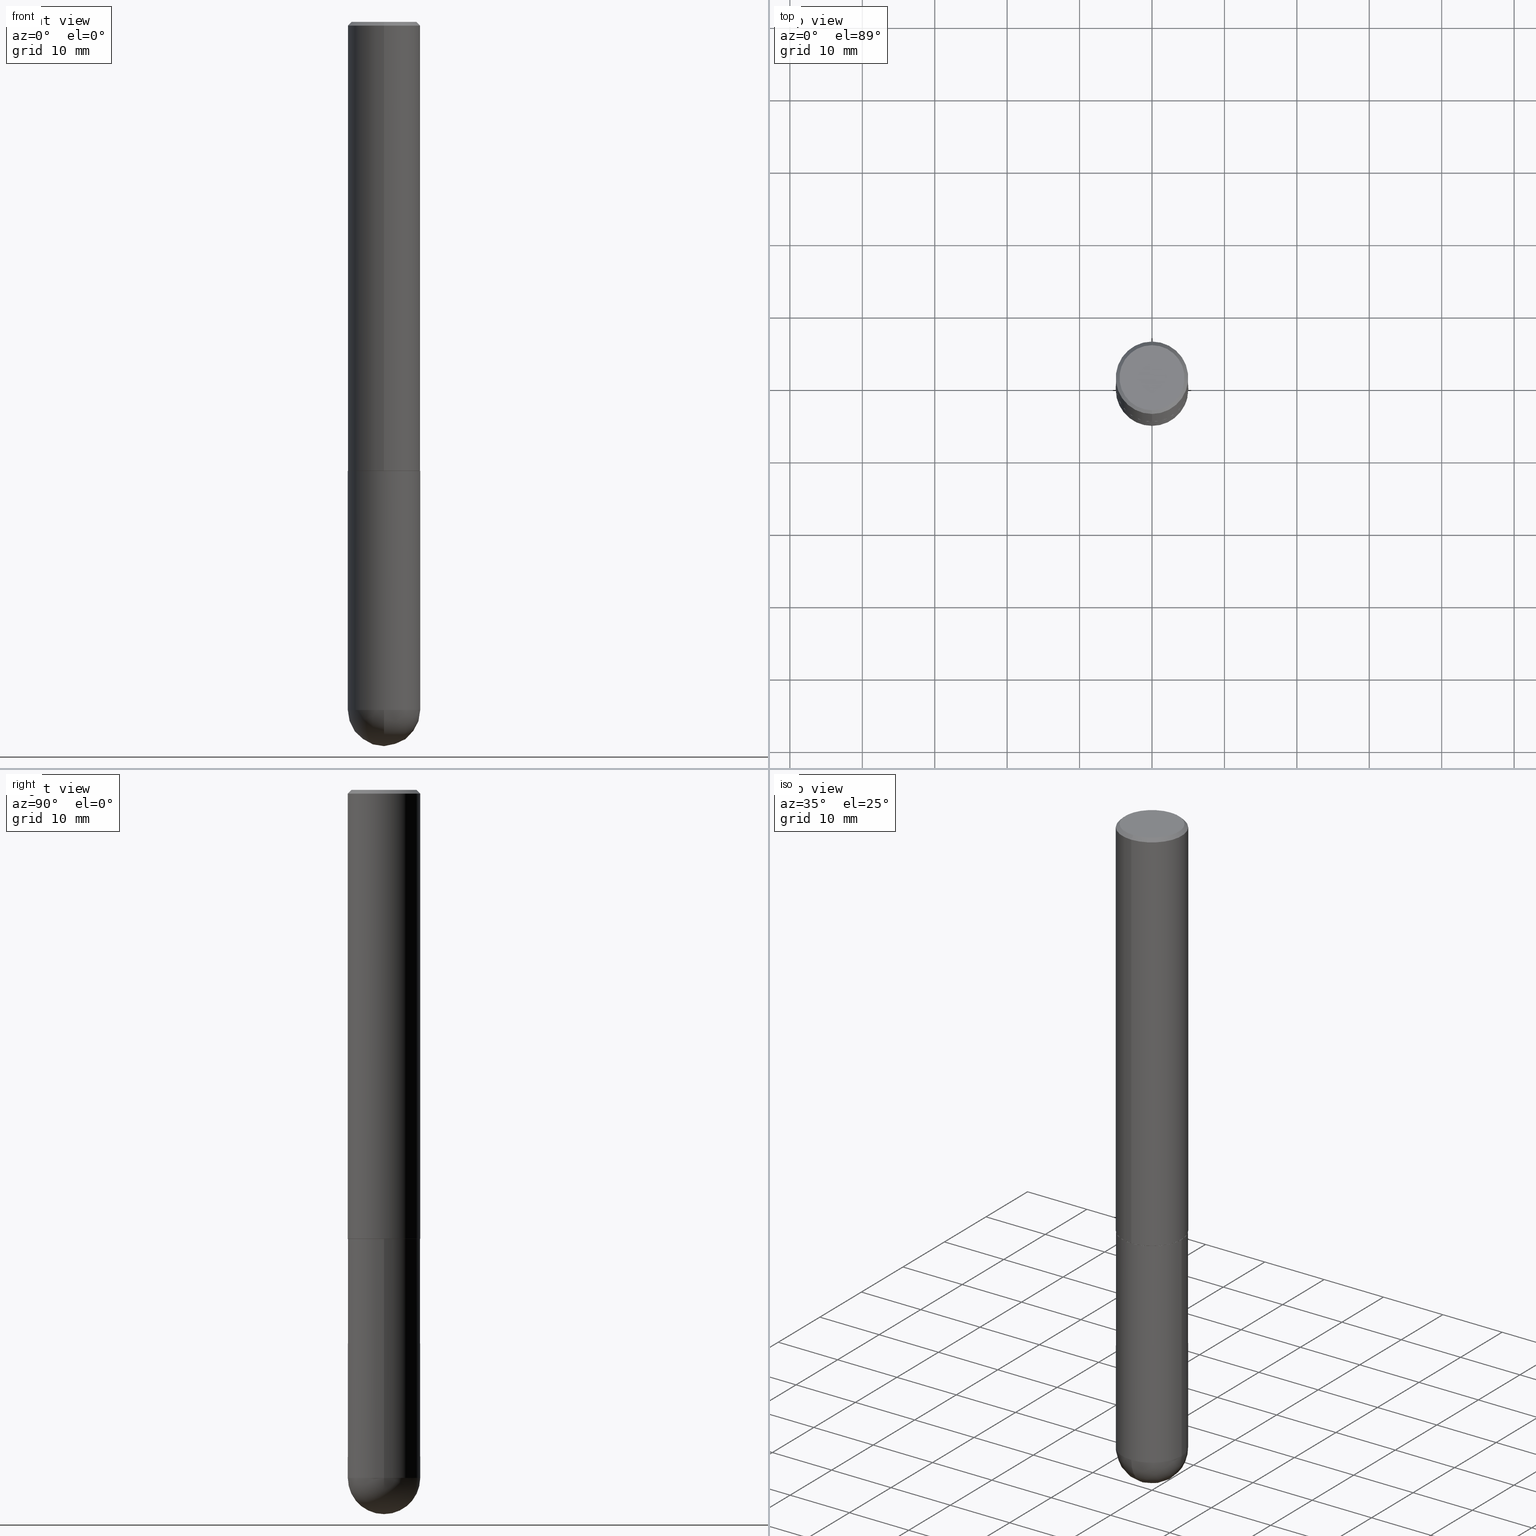
[diagram: canonical four-view strip — front | top / right | iso, engineering-drawing reading convention]
A machine part, canonical four-view strip (front | top / right | iso — engineering-drawing reading convention). The complete STEP part file that produces these views, byte-faithful:
ISO-10303-21;
HEADER;
FILE_DESCRIPTION (( 'STEP AP203' ),
    '1' );
FILE_NAME ('49588.STEP',
    '2024-04-10T12:29:13',
    ( '' ),
    ( '' ),
    'SwSTEP 2.0',
    'SolidWorks 2023',
    '' );
FILE_SCHEMA (( 'CONFIG_CONTROL_DESIGN' ));
ENDSEC;

DATA;
#1 = DIRECTION ( 'NONE',  ( -7.105427357601001070E-15, -1.000000000000000000, 0.000000000000000000 ) ) ;
#2 = DIRECTION ( 'NONE',  ( -6.982962677686265133E-15, -1.000000000000000000, 3.491137977679279029E-15 ) ) ;
#3 = DIRECTION ( 'NONE',  ( -2.444480225679141495E-29, 3.492897042394238758E-15, 1.000000000000000000 ) ) ;
#4 = AXIS2_PLACEMENT_3D ( 'NONE', #114, #113, #147 ) ;
#5 = DATE_TIME_ROLE ( 'classification_date' ) ;
#6 = CARTESIAN_POINT ( 'NONE',  ( 1.374596203102601167E-15, 0.1968499999999914762, -2.440900000000000514 ) ) ;
#7 = DIRECTION ( 'NONE',  ( 5.024295867787975615E-15, 0.7071067811865378028, 0.7071067811865571207 ) ) ;
#8 = LOCAL_TIME ( 8, 29, 13.00000000000000000, #285 ) ;
#9 = FACE_OUTER_BOUND ( 'NONE', #347, .T. ) ;
#10 = DIRECTION ( 'NONE',  ( -1.000000000000000000, 6.982962677686265922E-15, -4.883557194083113462E-29 ) ) ;
#11 = CARTESIAN_POINT ( 'NONE',  ( -1.398703375343667858E-15, -0.1968500000000133754, -3.740150000000000308 ) ) ;
#12 = CC_DESIGN_PERSON_AND_ORGANIZATION_ASSIGNMENT ( #96, #356, ( #197 ) ) ;
#13 = ORIENTED_EDGE ( 'NONE', *, *, #131, .F. ) ;
#14 = PLANE ( 'NONE',  #71 ) ;
#15 = DIRECTION ( 'NONE',  ( 2.444480225679141495E-29, -3.492897042394238758E-15, -1.000000000000000000 ) ) ;
#16 = ORIENTED_EDGE ( 'NONE', *, *, #142, .T. ) ;
#17 = MECHANICAL_CONTEXT ( 'NONE', #192, 'mechanical' ) ;
#18 = EDGE_CURVE ( 'NONE', #346, #255, #348, .T. ) ;
#19 = DIRECTION ( 'NONE',  ( -2.444480225679141495E-29, 3.492897042394238758E-15, 1.000000000000000000 ) ) ;
#20 = CIRCLE ( 'NONE', #75, 0.1958499999999999963 ) ;
#21 = ORIENTED_EDGE ( 'NONE', *, *, #33, .T. ) ;
#22 = ORIENTED_EDGE ( 'NONE', *, *, #54, .F. ) ;
#23 = ADVANCED_FACE ( 'NONE', ( #138 ), #232, .T. ) ;
#24 = CIRCLE ( 'NONE', #67, 0.1968500000000003303 ) ;
#25 = CARTESIAN_POINT ( 'NONE',  ( 8.815300377539453183E-29, -1.353284629761424370E-14, -3.740150000000000308 ) ) ;
#26 = CYLINDRICAL_SURFACE ( 'NONE', #40, 0.1968500000000001915 ) ;
#27 = AXIS2_PLACEMENT_3D ( 'NONE', #201, #331, #37 ) ;
#28 = DIRECTION ( 'NONE',  ( -6.982962677686265922E-15, -1.000000000000000000, 4.184602492209747448E-15 ) ) ;
#29 = VECTOR ( 'NONE', #278, 39.37007874015748854 ) ;
#30 = CARTESIAN_POINT ( 'NONE',  ( 9.146420155453340551E-29, -1.305866392947419340E-14, -3.740150000000000752 ) ) ;
#31 = CC_DESIGN_DATE_AND_TIME_ASSIGNMENT ( #195, #63, ( #180 ) ) ;
#32 = CIRCLE ( 'NONE', #273, 0.1968500000000000527 ) ;
#33 = EDGE_CURVE ( 'NONE', #313, #158, #47, .T. ) ;
#34 = CARTESIAN_POINT ( 'NONE',  ( 0.1968499999999999694, -1.216510656783075637E-14, -3.740150000000000752 ) ) ;
#35 = ORIENTED_EDGE ( 'NONE', *, *, #38, .T. ) ;
#36 = CARTESIAN_POINT ( 'NONE',  ( 8.815300377539453183E-29, -1.353284629761424370E-14, -3.740150000000000308 ) ) ;
#37 = DIRECTION ( 'NONE',  ( -6.982962677686265922E-15, -1.000000000000000000, 3.492897042394239153E-15 ) ) ;
#38 = EDGE_CURVE ( 'NONE', #158, #313, #408, .T. ) ;
#39 = VERTEX_POINT ( 'NONE', #259 ) ;
#40 = AXIS2_PLACEMENT_3D ( 'NONE', #291, #263, #254 ) ;
#41 = CARTESIAN_POINT ( 'NONE',  ( 1.398703375343789145E-15, 0.1968499999999918093, -2.439900000000000624 ) ) ;
#42 = ORIENTED_EDGE ( 'NONE', *, *, #289, .T. ) ;
#43 = DIRECTION ( 'NONE',  ( 2.444480225679141495E-29, -3.492897042394238758E-15, -1.000000000000000000 ) ) ;
#44 = DIRECTION ( 'NONE',  ( -6.982962677686265922E-15, -1.000000000000000000, 4.184602492209747448E-15 ) ) ;
#45 = EDGE_LOOP ( 'NONE', ( #167, #90, #205, #211, #118 ) ) ;
#46 = UNCERTAINTY_MEASURE_WITH_UNIT (LENGTH_MEASURE( 1.000000000000000082E-05 ), #127, 'distance_accuracy_value', 'NONE');
#47 = CIRCLE ( 'NONE', #107, 0.1968500000000000250 ) ;
#48 = LINE ( 'NONE', #154, #187 ) ;
#49 = ADVANCED_FACE ( 'NONE', ( #95 ), #199, .F. ) ;
#50 = CONICAL_SURFACE ( 'NONE', #117, 0.1958499999999999963, 0.7853981633974311816 ) ;
#51 = PERSON_AND_ORGANIZATION_ROLE ( 'design_owner' ) ;
#52 = APPROVAL_PERSON_ORGANIZATION ( #216, #340, #212 ) ;
#53 = ORIENTED_EDGE ( 'NONE', *, *, #38, .F. ) ;
#54 = EDGE_CURVE ( 'NONE', #255, #158, #357, .T. ) ;
#55 = COORDINATED_UNIVERSAL_TIME_OFFSET ( 5, 0, .BEHIND. ) ;
#56 = AXIS2_PLACEMENT_3D ( 'NONE', #68, #394, #163 ) ;
#57 = EDGE_LOOP ( 'NONE', ( #21, #35 ) ) ;
#58 = CYLINDRICAL_SURFACE ( 'NONE', #156, 0.1968500000000001915 ) ;
#59 = PERSON_AND_ORGANIZATION ( #270, #305 ) ;
#60 = ADVANCED_FACE ( 'NONE', ( #361 ), #329, .T. ) ;
#61 = DIRECTION ( 'NONE',  ( -6.982962677686265922E-15, -1.000000000000000000, 4.184602492209747448E-15 ) ) ;
#62 = DIMENSIONAL_EXPONENTS ( 1.000000000000000000, 0.000000000000000000, 0.000000000000000000, 0.000000000000000000, 0.000000000000000000, 0.000000000000000000, 0.000000000000000000 ) ;
#63 = DATE_TIME_ROLE ( 'creation_date' ) ;
#64 = DIRECTION ( 'NONE',  ( -2.445468806185136597E-29, 3.491481338843145583E-15, 1.000000000000000000 ) ) ;
#65 = PERSON_AND_ORGANIZATION ( #270, #305 ) ;
#66 = ORIENTED_EDGE ( 'NONE', *, *, #94, .F. ) ;
#67 = AXIS2_PLACEMENT_3D ( 'NONE', #233, #368, #73 ) ;
#68 = CARTESIAN_POINT ( 'NONE',  ( 9.146420155453340551E-29, -1.305866392947419340E-14, -3.740150000000000752 ) ) ;
#69 = COORDINATED_UNIVERSAL_TIME_OFFSET ( 5, 0, .BEHIND. ) ;
#70 = DIRECTION ( 'NONE',  ( -2.445468806185136597E-29, 3.491481338843145583E-15, 1.000000000000000000 ) ) ;
#71 = AXIS2_PLACEMENT_3D ( 'NONE', #373, #77, #275 ) ;
#72 = DIRECTION ( 'NONE',  ( -2.444480225679141495E-29, 3.492897042394238758E-15, 1.000000000000000000 ) ) ;
#73 = DIRECTION ( 'NONE',  ( -6.982962677686265133E-15, -1.000000000000000000, 4.163344669033668535E-15 ) ) ;
#74 = CARTESIAN_POINT ( 'NONE',  ( -1.350489030861325626E-15, -0.1968500000000001082, -0.01999999999999935510 ) ) ;
#75 = AXIS2_PLACEMENT_3D ( 'NONE', #238, #200, #402 ) ;
#76 = FACE_OUTER_BOUND ( 'NONE', #302, .T. ) ;
#77 = DIRECTION ( 'NONE',  ( -2.444480225679141214E-29, 3.492897042394238758E-15, 1.000000000000000000 ) ) ;
#78 = ORIENTED_EDGE ( 'NONE', *, *, #317, .T. ) ;
#79 = ADVANCED_FACE ( 'NONE', ( #189 ), #26, .T. ) ;
#80 = CARTESIAN_POINT ( 'NONE',  ( 0.000000000000000000, 0.000000000000000000, 0.000000000000000000 ) ) ;
#81 = PRODUCT_RELATED_PRODUCT_CATEGORY ( 'detail', '', ( #323 ) ) ;
#82 = VERTEX_POINT ( 'NONE', #34 ) ;
#83 = VECTOR ( 'NONE', #400, 39.37007874015748143 ) ;
#84 = ORIENTED_EDGE ( 'NONE', *, *, #276, .T. ) ;
#85 = CARTESIAN_POINT ( 'NONE',  ( 0.000000000000000000, 0.000000000000000000, 0.000000000000000000 ) ) ;
#86 = SECURITY_CLASSIFICATION ( '', '', #92 ) ;
#87 = ORIENTED_EDGE ( 'NONE', *, *, #91, .T. ) ;
#88 =( NAMED_UNIT ( * ) PLANE_ANGLE_UNIT ( ) SI_UNIT ( $, .RADIAN. ) );
#89 = AXIS2_PLACEMENT_3D ( 'NONE', #134, #257, #326 ) ;
#90 = ORIENTED_EDGE ( 'NONE', *, *, #54, .T. ) ;
#91 = EDGE_CURVE ( 'NONE', #294, #213, #284, .T. ) ;
#92 = SECURITY_CLASSIFICATION_LEVEL ( 'unclassified' ) ;
#93 = EDGE_LOOP ( 'NONE', ( #248, #105, #252, #384 ) ) ;
#94 = EDGE_CURVE ( 'NONE', #39, #287, #401, .T. ) ;
#95 = FACE_OUTER_BOUND ( 'NONE', #57, .T. ) ;
#96 = PERSON_AND_ORGANIZATION ( #270, #305 ) ;
#97 = DIRECTION ( 'NONE',  ( -2.445468806185136877E-29, 3.491481338843145188E-15, 1.000000000000000000 ) ) ;
#98 = MANIFOLD_SOLID_BREP ( 'Body-Move/Copy2[1]', #385 ) ;
#99 = EDGE_CURVE ( 'NONE', #178, #294, #292, .T. ) ;
#100 = AXIS2_PLACEMENT_3D ( 'NONE', #296, #265, #149 ) ;
#101 = PERSON_AND_ORGANIZATION ( #270, #305 ) ;
#102 = CYLINDRICAL_SURFACE ( 'NONE', #251, 0.1968499999999999694 ) ;
#103 = ADVANCED_FACE ( 'NONE', ( #132 ), #102, .T. ) ;
#104 = APPROVAL_STATUS ( 'not_yet_approved' ) ;
#105 = ORIENTED_EDGE ( 'NONE', *, *, #282, .T. ) ;
#106 = CARTESIAN_POINT ( 'NONE',  ( 1.391597947986215747E-15, 0.1958499999999914754, -2.440900000000000958 ) ) ;
#107 = AXIS2_PLACEMENT_3D ( 'NONE', #391, #161, #194 ) ;
#108 = CARTESIAN_POINT ( 'NONE',  ( -0.1968499999999999694, -9.391806989384456184E-15, -3.740150000000000752 ) ) ;
#109 = CIRCLE ( 'NONE', #27, 0.1768499999999999794 ) ;
#110 = FACE_OUTER_BOUND ( 'NONE', #311, .T. ) ;
#111 = MANIFOLD_SOLID_BREP ( 'Body-Move/Copy2[2]', #170 ) ;
#112 = LOCAL_TIME ( 8, 29, 13.00000000000000000, #55 ) ;
#113 = DIRECTION ( 'NONE',  ( 1.000000000000000000, -6.982962677686265922E-15, 4.883557194083112340E-29 ) ) ;
#114 = CARTESIAN_POINT ( 'NONE',  ( 8.815300377539453183E-29, -1.353284629761424370E-14, -3.740150000000000308 ) ) ;
#115 = EDGE_CURVE ( 'NONE', #150, #157, #32, .T. ) ;
#116 = DIRECTION ( 'NONE',  ( 1.000000000000000000, 0.000000000000000000, 0.000000000000000000 ) ) ;
#117 = AXIS2_PLACEMENT_3D ( 'NONE', #264, #398, #44 ) ;
#118 = ORIENTED_EDGE ( 'NONE', *, *, #131, .T. ) ;
#119 = DIRECTION ( 'NONE',  ( -4.851104656540961908E-15, -0.7071067811865496822, -0.7071067811865453523 ) ) ;
#120 = AXIS2_PLACEMENT_3D ( 'NONE', #403, #143, #144 ) ;
#121 = CARTESIAN_POINT ( 'NONE',  ( -1.367613240424795443E-15, -0.1958500000000085450, -2.440899999999999181 ) ) ;
#122 = EDGE_CURVE ( 'NONE', #287, #82, #283, .T. ) ;
#123 = ORIENTED_EDGE ( 'NONE', *, *, #94, .T. ) ;
#124 = ADVANCED_BREP_SHAPE_REPRESENTATION ( '49588', ( #98, #111, #336 ), #288 ) ;
#125 = APPLICATION_PROTOCOL_DEFINITION ( 'international standard', 'config_control_design', 1994, #192 ) ;
#126 = ORIENTED_EDGE ( 'NONE', *, *, #183, .T. ) ;
#127 =( CONVERSION_BASED_UNIT ( 'INCH', #245 ) LENGTH_UNIT ( ) NAMED_UNIT ( #62 ) );
#128 = CC_DESIGN_APPROVAL ( #340, ( #180 ) ) ;
#129 = APPROVAL_ROLE ( '' ) ;
#130 = VECTOR ( 'NONE', #7, 39.37007874015748854 ) ;
#131 = EDGE_CURVE ( 'NONE', #82, #346, #355, .T. ) ;
#132 = FACE_OUTER_BOUND ( 'NONE', #376, .T. ) ;
#133 = CALENDAR_DATE ( 2024, 10, 4 ) ;
#134 = CARTESIAN_POINT ( 'NONE',  ( 9.146420155453340551E-29, -1.305866392947419340E-14, -3.740150000000000752 ) ) ;
#135 = ADVANCED_FACE ( 'NONE', ( #206 ), #330, .F. ) ;
#136 = CARTESIAN_POINT ( 'NONE',  ( 5.969144809017299038E-29, -8.522356799982232966E-15, -2.440900000000000070 ) ) ;
#137 = CALENDAR_DATE ( 2024, 10, 4 ) ;
#138 = FACE_OUTER_BOUND ( 'NONE', #274, .T. ) ;
#139 = AXIS2_PLACEMENT_3D ( 'NONE', #334, #43, #174 ) ;
#140 = DIRECTION ( 'NONE',  ( -1.000000000000000000, 7.105427357601001070E-15, -4.926315508542082329E-29 ) ) ;
#141 = LOCAL_TIME ( 8, 29, 13.00000000000000000, #363 ) ;
#142 = EDGE_CURVE ( 'NONE', #255, #287, #237, .T. ) ;
#143 = DIRECTION ( 'NONE',  ( -1.000000000000000000, 6.982962677686265922E-15, -4.883557194083113462E-29 ) ) ;
#144 = DIRECTION ( 'NONE',  ( 6.982962677686265922E-15, 1.000000000000000000, -2.775563112689114723E-15 ) ) ;
#145 = LINE ( 'NONE', #268, #83 ) ;
#146 = CC_DESIGN_APPROVAL ( #171, ( #86 ) ) ;
#147 = DIRECTION ( 'NONE',  ( 6.982962677686265922E-15, 1.000000000000000000, 0.000000000000000000 ) ) ;
#148 = ADVANCED_FACE ( 'NONE', ( #176 ), #14, .F. ) ;
#149 = DIRECTION ( 'NONE',  ( 6.982962677686265922E-15, 1.000000000000000000, -3.492897042394238758E-15 ) ) ;
#150 = VERTEX_POINT ( 'NONE', #74 ) ;
#151 = ORIENTED_EDGE ( 'NONE', *, *, #18, .F. ) ;
#152 = VERTEX_POINT ( 'NONE', #304 ) ;
#153 = LINE ( 'NONE', #121, #29 ) ;
#154 = CARTESIAN_POINT ( 'NONE',  ( -1.350489030861325626E-15, -0.1968500000000001082, -0.01999999999999935510 ) ) ;
#155 = CARTESIAN_POINT ( 'NONE',  ( -1.374596203102484021E-15, -0.1968500000000088512, -2.439899999999998847 ) ) ;
#156 = AXIS2_PLACEMENT_3D ( 'NONE', #80, #375, #250 ) ;
#157 = VERTEX_POINT ( 'NONE', #306 ) ;
#158 = VERTEX_POINT ( 'NONE', #168 ) ;
#159 = CARTESIAN_POINT ( 'NONE',  ( -8.408637260450320895E-46, 1.201503039748787868E-31, 3.439846709381409668E-17 ) ) ;
#160 = ADVANCED_FACE ( 'NONE', ( #110 ), #231, .T. ) ;
#161 = DIRECTION ( 'NONE',  ( -2.445468806185136597E-29, 3.491481338843145583E-15, 1.000000000000000000 ) ) ;
#162 = APPROVAL_DATE_TIME ( #321, #171 ) ;
#163 = DIRECTION ( 'NONE',  ( 1.000000000000000000, -6.982962677686269866E-15, 0.000000000000000000 ) ) ;
#164 = CARTESIAN_POINT ( 'NONE',  ( 0.000000000000000000, 0.000000000000000000, 0.000000000000000000 ) ) ;
#165 = PERSON_AND_ORGANIZATION ( #270, #305 ) ;
#166 = DIRECTION ( 'NONE',  ( -2.445468806185136597E-29, 3.491481338843145583E-15, 1.000000000000000000 ) ) ;
#167 = ORIENTED_EDGE ( 'NONE', *, *, #18, .T. ) ;
#168 = CARTESIAN_POINT ( 'NONE',  ( -0.1968500000000000250, -9.391806989384456184E-15, -2.440900000000000070 ) ) ;
#169 = LINE ( 'NONE', #300, #266 ) ;
#170 = CLOSED_SHELL ( 'NONE', ( #253, #377, #365, #303, #79, #23, #148, #135 ) ) ;
#171 = APPROVAL ( #104, 'UNSPECIFIED' ) ;
#172 = CIRCLE ( 'NONE', #229, 0.1968500000000000527 ) ;
#173 = ORIENTED_EDGE ( 'NONE', *, *, #358, .F. ) ;
#174 = DIRECTION ( 'NONE',  ( 6.982962677686265133E-15, 1.000000000000000000, -3.491137977679279029E-15 ) ) ;
#175 = APPROVAL_PERSON_ORGANIZATION ( #65, #171, #129 ) ;
#176 = FACE_OUTER_BOUND ( 'NONE', #218, .T. ) ;
#177 = ORIENTED_EDGE ( 'NONE', *, *, #280, .T. ) ;
#178 = VERTEX_POINT ( 'NONE', #202 ) ;
#179 = DIRECTION ( 'NONE',  ( -2.444480225679141495E-29, 3.492897042394238758E-15, 1.000000000000000000 ) ) ;
#180 = PRODUCT_DEFINITION ( 'UNKNOWN', '', #197, #310 ) ;
#181 = CARTESIAN_POINT ( 'NONE',  ( 0.1968500000000000250, -9.896953003084774574E-15, -2.440900000000000070 ) ) ;
#182 = ORIENTED_EDGE ( 'NONE', *, *, #276, .F. ) ;
#183 = EDGE_CURVE ( 'NONE', #337, #150, #369, .T. ) ;
#184 = VECTOR ( 'NONE', #97, 39.37007874015748143 ) ;
#185 = LINE ( 'NONE', #244, #380 ) ;
#186 = DIRECTION ( 'NONE',  ( -6.982962677686265922E-15, -1.000000000000000000, 3.492897042394239153E-15 ) ) ;
#187 = VECTOR ( 'NONE', #119, 39.37007874015748143 ) ;
#188 = VERTEX_POINT ( 'NONE', #333 ) ;
#189 = FACE_OUTER_BOUND ( 'NONE', #277, .T. ) ;
#190 = APPLICATION_CONTEXT ( 'configuration controlled 3d designs of mechanical parts and assemblies' ) ;
#191 = CARTESIAN_POINT ( 'NONE',  ( 4.888960451358293429E-31, -6.985794084788491174E-17, -0.02000000000000004205 ) ) ;
#192 = APPLICATION_CONTEXT ( 'configuration controlled 3d designs of mechanical parts and assemblies' ) ;
#193 = PERSON_AND_ORGANIZATION_ROLE ( 'creator' ) ;
#194 = DIRECTION ( 'NONE',  ( 1.000000000000000000, -6.982962677686262766E-15, 0.000000000000000000 ) ) ;
#195 = DATE_AND_TIME ( #256, #362 ) ;
#196 = CARTESIAN_POINT ( 'NONE',  ( -0.1968499999999999694, 1.398703375343756999E-15, -9.682923725166782276E-30 ) ) ;
#197 = PRODUCT_DEFINITION_FORMATION_WITH_SPECIFIED_SOURCE ( 'ANY', '', #323, .NOT_KNOWN. ) ;
#198 = DATE_AND_TIME ( #392, #141 ) ;
#199 = PLANE ( 'NONE',  #222 ) ;
#200 = DIRECTION ( 'NONE',  ( -2.444480225679141495E-29, 3.492897042394238758E-15, 1.000000000000000000 ) ) ;
#201 = CARTESIAN_POINT ( 'NONE',  ( -8.408637260450320895E-46, 1.201503039748787868E-31, 3.439846709381409668E-17 ) ) ;
#202 = CARTESIAN_POINT ( 'NONE',  ( -1.367613240424795443E-15, -0.1958500000000085450, -2.440899999999999181 ) ) ;
#203 = AXIS2_PLACEMENT_3D ( 'NONE', #36, #10, #234 ) ;
#204 = CARTESIAN_POINT ( 'NONE',  ( 9.146420155453340551E-29, -1.305866392947419340E-14, -3.740150000000000752 ) ) ;
#205 = ORIENTED_EDGE ( 'NONE', *, *, #33, .F. ) ;
#206 = FACE_OUTER_BOUND ( 'NONE', #267, .T. ) ;
#207 = CC_DESIGN_APPROVAL ( #349, ( #197 ) ) ;
#208 = ORIENTED_EDGE ( 'NONE', *, *, #99, .T. ) ;
#209 = DIRECTION ( 'NONE',  ( 6.982962677686265133E-15, 1.000000000000000000, -3.491137977679279029E-15 ) ) ;
#210 =( LENGTH_UNIT ( ) NAMED_UNIT ( * ) SI_UNIT ( $, .METRE. ) );
#211 = ORIENTED_EDGE ( 'NONE', *, *, #351, .F. ) ;
#212 = APPROVAL_ROLE ( '' ) ;
#213 = VERTEX_POINT ( 'NONE', #41 ) ;
#214 = EDGE_CURVE ( 'NONE', #39, #346, #339, .T. ) ;
#215 = AXIS2_PLACEMENT_3D ( 'NONE', #397, #3, #61 ) ;
#216 = PERSON_AND_ORGANIZATION ( #270, #305 ) ;
#217 = CC_DESIGN_PERSON_AND_ORGANIZATION_ASSIGNMENT ( #101, #318, ( #180 ) ) ;
#218 = EDGE_LOOP ( 'NONE', ( #374, #316 ) ) ;
#219 = COORDINATED_UNIVERSAL_TIME_OFFSET ( 5, 0, .BEHIND. ) ;
#220 = EDGE_LOOP ( 'NONE', ( #208, #87, #271, #404 ) ) ;
#221 = DATE_AND_TIME ( #133, #112 ) ;
#222 = AXIS2_PLACEMENT_3D ( 'NONE', #6, #352, #223 ) ;
#223 = DIRECTION ( 'NONE',  ( -1.000000000000000000, 6.982962677686265922E-15, -4.876176775795935793E-29 ) ) ;
#224 = PERSON_AND_ORGANIZATION ( #270, #305 ) ;
#225 = DIRECTION ( 'NONE',  ( 1.000000000000000000, -6.982962677686266711E-15, 4.876176775795935793E-29 ) ) ;
#226 = AXIS2_PLACEMENT_3D ( 'NONE', #159, #312, #186 ) ;
#227 = APPROVAL_DATE_TIME ( #221, #340 ) ;
#228 = DIRECTION ( 'NONE',  ( -2.444480225679141495E-29, 3.492897042394238758E-15, 1.000000000000000000 ) ) ;
#229 = AXIS2_PLACEMENT_3D ( 'NONE', #338, #19, #379 ) ;
#230 = ADVANCED_FACE ( 'NONE', ( #9 ), #272, .T. ) ;
#231 = SPHERICAL_SURFACE ( 'NONE', #203, 0.1968500000000001360 ) ;
#232 = CONICAL_SURFACE ( 'NONE', #390, 0.1958499999999999963, 0.7853981633974311816 ) ;
#233 = CARTESIAN_POINT ( 'NONE',  ( 5.964287302634537555E-29, -8.522319493737701952E-15, -2.439899999999999736 ) ) ;
#234 = DIRECTION ( 'NONE',  ( 6.982962677686265922E-15, 1.000000000000000000, -2.775563112689114723E-15 ) ) ;
#235 = ORIENTED_EDGE ( 'NONE', *, *, #386, .T. ) ;
#236 = DIRECTION ( 'NONE',  ( 1.000000000000000000, -6.982962677686269866E-15, 0.000000000000000000 ) ) ;
#237 = CIRCLE ( 'NONE', #332, 0.1968499999999999694 ) ;
#238 = CARTESIAN_POINT ( 'NONE',  ( 5.966731782860215927E-29, -8.525812390780097403E-15, -2.440900000000000070 ) ) ;
#239 = ORIENTED_EDGE ( 'NONE', *, *, #115, .T. ) ;
#240 = ORIENTED_EDGE ( 'NONE', *, *, #282, .F. ) ;
#241 = CARTESIAN_POINT ( 'NONE',  ( 1.374596203102631736E-15, 0.1968499999999867855, -3.740150000000001196 ) ) ;
#242 = ORIENTED_EDGE ( 'NONE', *, *, #280, .F. ) ;
#243 = EDGE_CURVE ( 'NONE', #294, #178, #20, .T. ) ;
#244 = CARTESIAN_POINT ( 'NONE',  ( 0.1968499999999999694, -1.374596203102541411E-15, 9.598753983154298056E-30 ) ) ;
#245 = LENGTH_MEASURE_WITH_UNIT ( LENGTH_MEASURE( 0.02539999999999999897 ), #210 );
#246 = EDGE_LOOP ( 'NONE', ( #242, #78, #239, #350 ) ) ;
#247 = APPROVAL_STATUS ( 'not_yet_approved' ) ;
#248 = ORIENTED_EDGE ( 'NONE', *, *, #409, .T. ) ;
#249 = ORIENTED_EDGE ( 'NONE', *, *, #386, .F. ) ;
#250 = DIRECTION ( 'NONE',  ( -6.982962677686265133E-15, -1.000000000000000000, 3.492897042394238758E-15 ) ) ;
#251 = AXIS2_PLACEMENT_3D ( 'NONE', #354, #64, #225 ) ;
#252 = ORIENTED_EDGE ( 'NONE', *, *, #115, .F. ) ;
#253 = ADVANCED_FACE ( 'NONE', ( #367 ), #50, .T. ) ;
#254 = DIRECTION ( 'NONE',  ( -6.982962677686265133E-15, -1.000000000000000000, 3.492897042394238758E-15 ) ) ;
#255 = VERTEX_POINT ( 'NONE', #108 ) ;
#256 = CALENDAR_DATE ( 2024, 10, 4 ) ;
#257 = DIRECTION ( 'NONE',  ( -2.445468806185136597E-29, 3.491481338843145583E-15, 1.000000000000000000 ) ) ;
#258 = SHAPE_DEFINITION_REPRESENTATION ( #260, #124 ) ;
#259 = CARTESIAN_POINT ( 'NONE',  ( 9.305107886238245984E-29, -1.420809081304490838E-14, -3.937000000000000721 ) ) ;
#260 = PRODUCT_DEFINITION_SHAPE ( 'NONE', 'NONE',  #180 ) ;
#261 = DATE_AND_TIME ( #137, #8 ) ;
#262 = CARTESIAN_POINT ( 'NONE',  ( 5.966731782860215927E-29, -8.525812390780097403E-15, -2.440900000000000070 ) ) ;
#263 = DIRECTION ( 'NONE',  ( -2.444480225679141495E-29, 3.492897042394238758E-15, 1.000000000000000000 ) ) ;
#264 = CARTESIAN_POINT ( 'NONE',  ( 5.966731782860215927E-29, -8.525812390780097403E-15, -2.440900000000000070 ) ) ;
#265 = DIRECTION ( 'NONE',  ( 2.444480225679141214E-29, -3.492897042394238758E-15, -1.000000000000000000 ) ) ;
#266 = VECTOR ( 'NONE', #298, 39.37007874015748143 ) ;
#267 = EDGE_LOOP ( 'NONE', ( #410, #177 ) ) ;
#268 = CARTESIAN_POINT ( 'NONE',  ( 1.374596203102542200E-15, 0.1968499999999999694, -0.02000000000000072900 ) ) ;
#269 = AXIS2_PLACEMENT_3D ( 'NONE', #315, #179, #382 ) ;
#270 = PERSON ( 'UNSPECIFIED', 'UNSPECIFIED', 'UNSPECIFIED', ('UNSPECIFIED'), ('UNSPECIFIED'), ('UNSPECIFIED') ) ;
#271 = ORIENTED_EDGE ( 'NONE', *, *, #409, .F. ) ;
#272 = SPHERICAL_SURFACE ( 'NONE', #120, 0.1968500000000001360 ) ;
#273 = AXIS2_PLACEMENT_3D ( 'NONE', #191, #387, #2 ) ;
#274 = EDGE_LOOP ( 'NONE', ( #309, #364, #383, #182 ) ) ;
#275 = DIRECTION ( 'NONE',  ( -6.982962677686265922E-15, -1.000000000000000000, 3.492897042394238758E-15 ) ) ;
#276 = EDGE_CURVE ( 'NONE', #213, #337, #24, .T. ) ;
#277 = EDGE_LOOP ( 'NONE', ( #240, #84, #126, #249 ) ) ;
#278 = DIRECTION ( 'NONE',  ( -4.937700262164462845E-15, -0.7071067811865329178, 0.7071067811865620056 ) ) ;
#279 =( NAMED_UNIT ( * ) SI_UNIT ( $, .STERADIAN. ) SOLID_ANGLE_UNIT ( ) );
#280 = EDGE_CURVE ( 'NONE', #152, #188, #109, .T. ) ;
#281 = ORIENTED_EDGE ( 'NONE', *, *, #214, .F. ) ;
#282 = EDGE_CURVE ( 'NONE', #213, #157, #169, .T. ) ;
#283 = CIRCLE ( 'NONE', #89, 0.1968499999999999694 ) ;
#284 = LINE ( 'NONE', #106, #130 ) ;
#285 = COORDINATED_UNIVERSAL_TIME_OFFSET ( 5, 0, .BEHIND. ) ;
#286 = DIRECTION ( 'NONE',  ( 1.000000000000000000, -6.982962677686266711E-15, 4.876176775795935793E-29 ) ) ;
#287 = VERTEX_POINT ( 'NONE', #11 ) ;
#288 =( GEOMETRIC_REPRESENTATION_CONTEXT ( 3 ) GLOBAL_UNCERTAINTY_ASSIGNED_CONTEXT ( ( #46 ) ) GLOBAL_UNIT_ASSIGNED_CONTEXT ( ( #127, #88, #279 ) ) REPRESENTATION_CONTEXT ( 'NONE', 'WORKASPACE' ) );
#289 = EDGE_CURVE ( 'NONE', #188, #157, #145, .T. ) ;
#290 = PERSON_AND_ORGANIZATION_ROLE ( 'classification_officer' ) ;
#291 = CARTESIAN_POINT ( 'NONE',  ( 0.000000000000000000, 0.000000000000000000, 0.000000000000000000 ) ) ;
#292 = CIRCLE ( 'NONE', #215, 0.1958499999999999963 ) ;
#293 = DIRECTION ( 'NONE',  ( 1.000000000000000000, -6.982962677686269866E-15, 0.000000000000000000 ) ) ;
#294 = VERTEX_POINT ( 'NONE', #371 ) ;
#295 = CC_DESIGN_PERSON_AND_ORGANIZATION_ASSIGNMENT ( #165, #193, ( #197 ) ) ;
#296 = CARTESIAN_POINT ( 'NONE',  ( 1.234936949548815998E-15, 0.1768499999999999794, -6.005196084005140251E-16 ) ) ;
#297 = AXIS2_PLACEMENT_3D ( 'NONE', #25, #140, #1 ) ;
#298 = DIRECTION ( 'NONE',  ( -2.444480225679141495E-29, 3.492897042394238758E-15, 1.000000000000000000 ) ) ;
#299 = ORIENTED_EDGE ( 'NONE', *, *, #122, .T. ) ;
#300 = CARTESIAN_POINT ( 'NONE',  ( 1.398703375343758182E-15, 0.1968500000000001915, -6.875767827953065398E-16 ) ) ;
#301 = CONICAL_SURFACE ( 'NONE', #139, 0.1968500000000000527, 0.7853981633974479459 ) ;
#302 = EDGE_LOOP ( 'NONE', ( #307, #173, #42, #235 ) ) ;
#303 = ADVANCED_FACE ( 'NONE', ( #76 ), #301, .T. ) ;
#304 = CARTESIAN_POINT ( 'NONE',  ( -1.281884050883610492E-15, -0.1768499999999999794, 6.521173090412352440E-16 ) ) ;
#305 = ORGANIZATION ( 'UNSPECIFIED', 'UNSPECIFIED', '' ) ;
#306 = CARTESIAN_POINT ( 'NONE',  ( 1.374596203102542200E-15, 0.1968499999999999694, -0.02000000000000072900 ) ) ;
#307 = ORIENTED_EDGE ( 'NONE', *, *, #317, .F. ) ;
#308 = AXIS2_PLACEMENT_3D ( 'NONE', #136, #70, #389 ) ;
#309 = ORIENTED_EDGE ( 'NONE', *, *, #91, .F. ) ;
#310 = DESIGN_CONTEXT ( 'detailed design', #190, 'design' ) ;
#311 = EDGE_LOOP ( 'NONE', ( #66, #341, #13, #381 ) ) ;
#312 = DIRECTION ( 'NONE',  ( -2.444480225679141495E-29, 3.492897042394238758E-15, 1.000000000000000000 ) ) ;
#313 = VERTEX_POINT ( 'NONE', #181 ) ;
#314 = APPLICATION_PROTOCOL_DEFINITION ( 'international standard', 'config_control_design', 1994, #190 ) ;
#315 = CARTESIAN_POINT ( 'NONE',  ( 5.964287302634537555E-29, -8.522319493737701952E-15, -2.439899999999999736 ) ) ;
#316 = ORIENTED_EDGE ( 'NONE', *, *, #243, .F. ) ;
#317 = EDGE_CURVE ( 'NONE', #152, #150, #48, .T. ) ;
#318 = PERSON_AND_ORGANIZATION_ROLE ( 'creator' ) ;
#319 = ORIENTED_EDGE ( 'NONE', *, *, #142, .F. ) ;
#320 = CC_DESIGN_DATE_AND_TIME_ASSIGNMENT ( #261, #5, ( #86 ) ) ;
#321 = DATE_AND_TIME ( #327, #324 ) ;
#322 = DIRECTION ( 'NONE',  ( -2.445468806185136597E-29, 3.491481338843145583E-15, 1.000000000000000000 ) ) ;
#323 = PRODUCT ( '49588', '49588', '', ( #17 ) ) ;
#324 = LOCAL_TIME ( 8, 29, 13.00000000000000000, #219 ) ;
#325 = APPROVAL_STATUS ( 'not_yet_approved' ) ;
#326 = DIRECTION ( 'NONE',  ( 1.000000000000000000, -6.982962677686269866E-15, 0.000000000000000000 ) ) ;
#327 = CALENDAR_DATE ( 2024, 10, 4 ) ;
#328 = AXIS2_PLACEMENT_3D ( 'NONE', #30, #166, #293 ) ;
#329 = CYLINDRICAL_SURFACE ( 'NONE', #370, 0.1968499999999999694 ) ;
#330 = PLANE ( 'NONE',  #100 ) ;
#331 = DIRECTION ( 'NONE',  ( -2.444480225679141495E-29, 3.492897042394238758E-15, 1.000000000000000000 ) ) ;
#332 = AXIS2_PLACEMENT_3D ( 'NONE', #204, #335, #236 ) ;
#333 = CARTESIAN_POINT ( 'NONE',  ( 1.304766576325679099E-15, 0.1768499999999999794, -5.833203748536070507E-16 ) ) ;
#334 = CARTESIAN_POINT ( 'NONE',  ( 4.888960451358293429E-31, -6.985794084788491174E-17, -0.02000000000000004205 ) ) ;
#335 = DIRECTION ( 'NONE',  ( -2.445468806185136597E-29, 3.491481338843145583E-15, 1.000000000000000000 ) ) ;
#336 = AXIS2_PLACEMENT_3D ( 'NONE', #85, #412, #116 ) ;
#337 = VERTEX_POINT ( 'NONE', #155 ) ;
#338 = CARTESIAN_POINT ( 'NONE',  ( 4.888960451358293429E-31, -6.985794084788491174E-17, -0.02000000000000004205 ) ) ;
#339 = CIRCLE ( 'NONE', #4, 0.1968500000000001360 ) ;
#340 = APPROVAL ( #247, 'UNSPECIFIED' ) ;
#341 = ORIENTED_EDGE ( 'NONE', *, *, #214, .T. ) ;
#342 = FACE_OUTER_BOUND ( 'NONE', #93, .T. ) ;
#343 = ORIENTED_EDGE ( 'NONE', *, *, #351, .T. ) ;
#344 = PERSON_AND_ORGANIZATION ( #270, #305 ) ;
#345 = APPROVAL_PERSON_ORGANIZATION ( #224, #349, #360 ) ;
#346 = VERTEX_POINT ( 'NONE', #241 ) ;
#347 = EDGE_LOOP ( 'NONE', ( #281, #123, #319, #151 ) ) ;
#348 = CIRCLE ( 'NONE', #56, 0.1968499999999999694 ) ;
#349 = APPROVAL ( #325, 'UNSPECIFIED' ) ;
#350 = ORIENTED_EDGE ( 'NONE', *, *, #289, .F. ) ;
#351 = EDGE_CURVE ( 'NONE', #82, #313, #185, .T. ) ;
#352 = DIRECTION ( 'NONE',  ( 2.438088387897960049E-29, -3.491481338843145188E-15, -1.000000000000000000 ) ) ;
#353 = CC_DESIGN_SECURITY_CLASSIFICATION ( #86, ( #197 ) ) ;
#354 = CARTESIAN_POINT ( 'NONE',  ( 0.000000000000000000, 0.000000000000000000, 0.000000000000000000 ) ) ;
#355 = CIRCLE ( 'NONE', #328, 0.1968499999999999694 ) ;
#356 = PERSON_AND_ORGANIZATION_ROLE ( 'design_supplier' ) ;
#357 = LINE ( 'NONE', #196, #184 ) ;
#358 = EDGE_CURVE ( 'NONE', #188, #152, #411, .T. ) ;
#359 = CC_DESIGN_PERSON_AND_ORGANIZATION_ASSIGNMENT ( #59, #290, ( #86 ) ) ;
#360 = APPROVAL_ROLE ( '' ) ;
#361 = FACE_OUTER_BOUND ( 'NONE', #45, .T. ) ;
#362 = LOCAL_TIME ( 8, 29, 13.00000000000000000, #69 ) ;
#363 = COORDINATED_UNIVERSAL_TIME_OFFSET ( 5, 0, .BEHIND. ) ;
#364 = ORIENTED_EDGE ( 'NONE', *, *, #243, .T. ) ;
#365 = ADVANCED_FACE ( 'NONE', ( #406 ), #393, .T. ) ;
#366 = VECTOR ( 'NONE', #72, 39.37007874015748143 ) ;
#367 = FACE_OUTER_BOUND ( 'NONE', #220, .T. ) ;
#368 = DIRECTION ( 'NONE',  ( -2.444480225679141495E-29, 3.492897042394238758E-15, 1.000000000000000000 ) ) ;
#369 = LINE ( 'NONE', #399, #366 ) ;
#370 = AXIS2_PLACEMENT_3D ( 'NONE', #164, #322, #286 ) ;
#371 = CARTESIAN_POINT ( 'NONE',  ( 1.395150661665018026E-15, 0.1958499999999914754, -2.440900000000000958 ) ) ;
#372 = AXIS2_PLACEMENT_3D ( 'NONE', #378, #15, #209 ) ;
#373 = CARTESIAN_POINT ( 'NONE',  ( 5.966731782860215927E-29, -8.525812390780097403E-15, -2.440900000000000070 ) ) ;
#374 = ORIENTED_EDGE ( 'NONE', *, *, #99, .F. ) ;
#375 = DIRECTION ( 'NONE',  ( -2.444480225679141495E-29, 3.492897042394238758E-15, 1.000000000000000000 ) ) ;
#376 = EDGE_LOOP ( 'NONE', ( #22, #16, #299, #343, #53 ) ) ;
#377 = ADVANCED_FACE ( 'NONE', ( #342 ), #58, .T. ) ;
#378 = CARTESIAN_POINT ( 'NONE',  ( 4.888960451358293429E-31, -6.985794084788491174E-17, -0.02000000000000004205 ) ) ;
#379 = DIRECTION ( 'NONE',  ( -6.982962677686265133E-15, -1.000000000000000000, 3.491137977679279029E-15 ) ) ;
#380 = VECTOR ( 'NONE', #407, 39.37007874015748143 ) ;
#381 = ORIENTED_EDGE ( 'NONE', *, *, #122, .F. ) ;
#382 = DIRECTION ( 'NONE',  ( -6.982962677686265133E-15, -1.000000000000000000, 4.163344669033668535E-15 ) ) ;
#383 = ORIENTED_EDGE ( 'NONE', *, *, #395, .T. ) ;
#384 = ORIENTED_EDGE ( 'NONE', *, *, #183, .F. ) ;
#385 = CLOSED_SHELL ( 'NONE', ( #60, #230, #160, #49, #103 ) ) ;
#386 = EDGE_CURVE ( 'NONE', #157, #150, #172, .T. ) ;
#387 = DIRECTION ( 'NONE',  ( -2.444480225679141495E-29, 3.492897042394238758E-15, 1.000000000000000000 ) ) ;
#388 = APPROVAL_DATE_TIME ( #198, #349 ) ;
#389 = DIRECTION ( 'NONE',  ( 1.000000000000000000, -6.982962677686262766E-15, 0.000000000000000000 ) ) ;
#390 = AXIS2_PLACEMENT_3D ( 'NONE', #262, #228, #28 ) ;
#391 = CARTESIAN_POINT ( 'NONE',  ( 5.969144809017299038E-29, -8.522356799982232966E-15, -2.440900000000000070 ) ) ;
#392 = CALENDAR_DATE ( 2024, 10, 4 ) ;
#393 = CONICAL_SURFACE ( 'NONE', #372, 0.1968500000000000527, 0.7853981633974479459 ) ;
#394 = DIRECTION ( 'NONE',  ( -2.445468806185136597E-29, 3.491481338843145583E-15, 1.000000000000000000 ) ) ;
#395 = EDGE_CURVE ( 'NONE', #178, #337, #153, .T. ) ;
#396 = CIRCLE ( 'NONE', #269, 0.1968500000000003303 ) ;
#397 = CARTESIAN_POINT ( 'NONE',  ( 5.966731782860215927E-29, -8.525812390780097403E-15, -2.440900000000000070 ) ) ;
#398 = DIRECTION ( 'NONE',  ( -2.444480225679141495E-29, 3.492897042394238758E-15, 1.000000000000000000 ) ) ;
#399 = CARTESIAN_POINT ( 'NONE',  ( -1.374596203102542594E-15, -0.1968500000000001915, 6.875767827953065398E-16 ) ) ;
#400 = DIRECTION ( 'NONE',  ( 4.937700262164545676E-15, 0.7071067811865447972, -0.7071067811865502373 ) ) ;
#401 = CIRCLE ( 'NONE', #297, 0.1968500000000001360 ) ;
#402 = DIRECTION ( 'NONE',  ( -6.982962677686265922E-15, -1.000000000000000000, 4.184602492209747448E-15 ) ) ;
#403 = CARTESIAN_POINT ( 'NONE',  ( 8.815300377539453183E-29, -1.353284629761424370E-14, -3.740150000000000308 ) ) ;
#404 = ORIENTED_EDGE ( 'NONE', *, *, #395, .F. ) ;
#405 = CC_DESIGN_PERSON_AND_ORGANIZATION_ASSIGNMENT ( #344, #51, ( #323 ) ) ;
#406 = FACE_OUTER_BOUND ( 'NONE', #246, .T. ) ;
#407 = DIRECTION ( 'NONE',  ( -2.445468806185136877E-29, 3.491481338843145188E-15, 1.000000000000000000 ) ) ;
#408 = CIRCLE ( 'NONE', #308, 0.1968500000000000250 ) ;
#409 = EDGE_CURVE ( 'NONE', #337, #213, #396, .T. ) ;
#410 = ORIENTED_EDGE ( 'NONE', *, *, #358, .T. ) ;
#411 = CIRCLE ( 'NONE', #226, 0.1768499999999999794 ) ;
#412 = DIRECTION ( 'NONE',  ( 0.000000000000000000, 0.000000000000000000, 1.000000000000000000 ) ) ;
ENDSEC;
END-ISO-10303-21;
